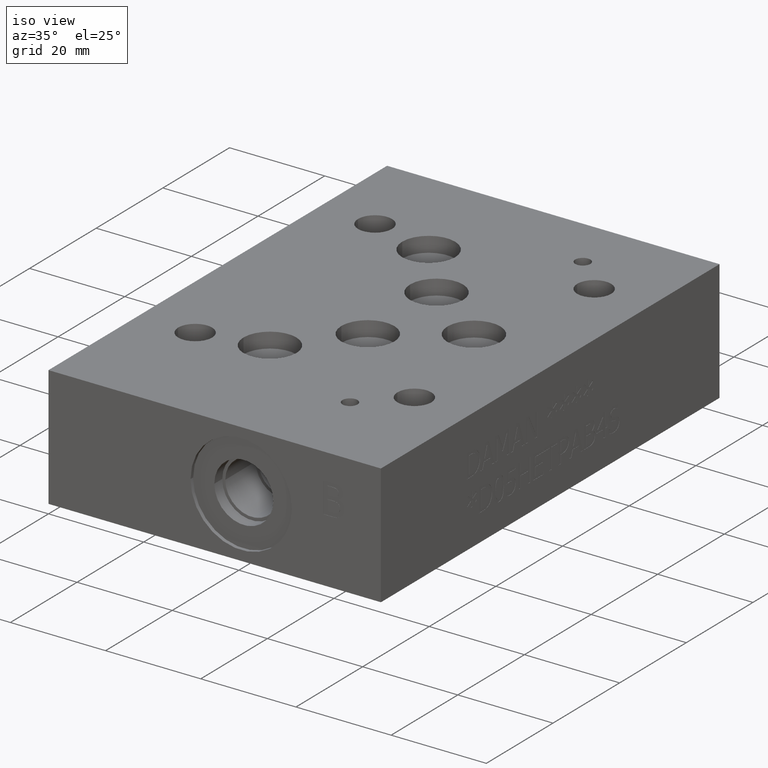
[diagram: clean part render]
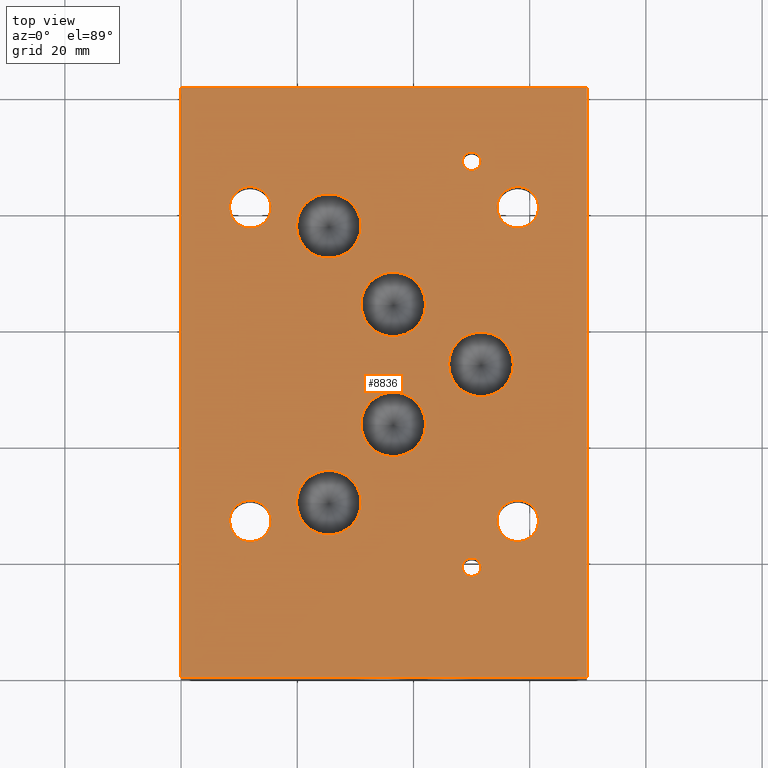
[diagram: tour spotlight — one face highlighted and labeled with its STEP entity id]
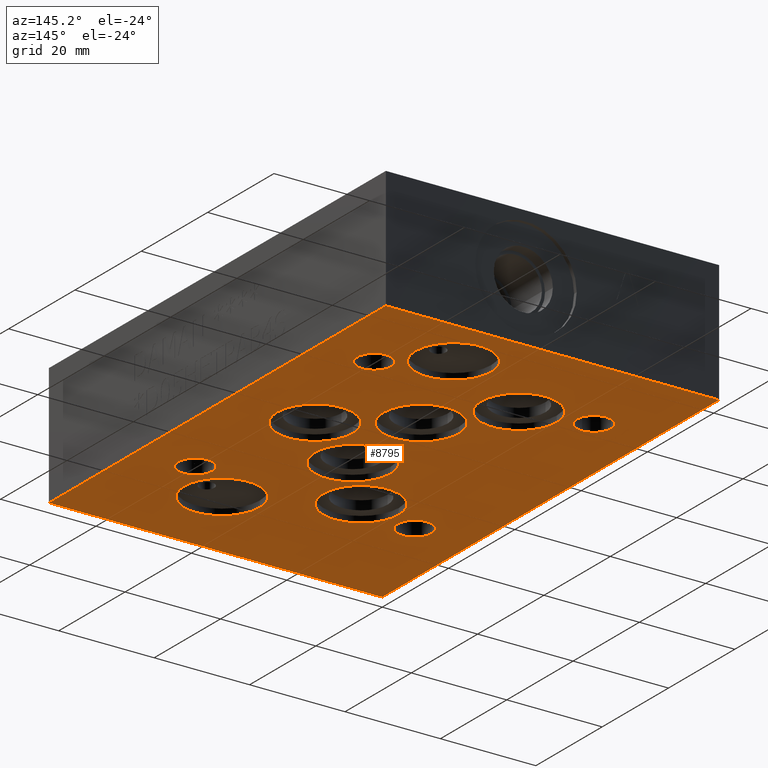
[diagram: tour spotlight — one face highlighted and labeled with its STEP entity id]
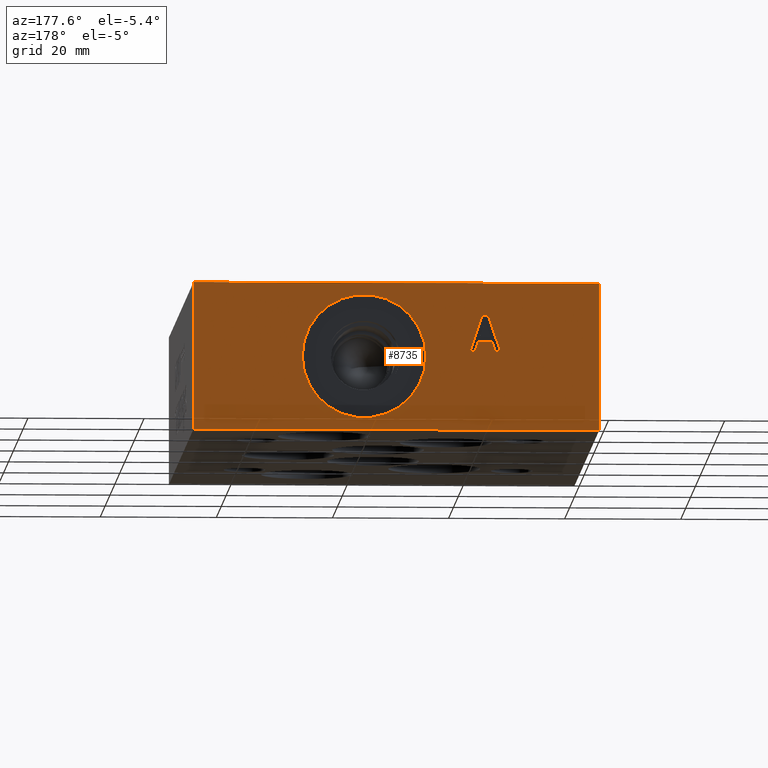
[diagram: tour spotlight — one face highlighted and labeled with its STEP entity id]
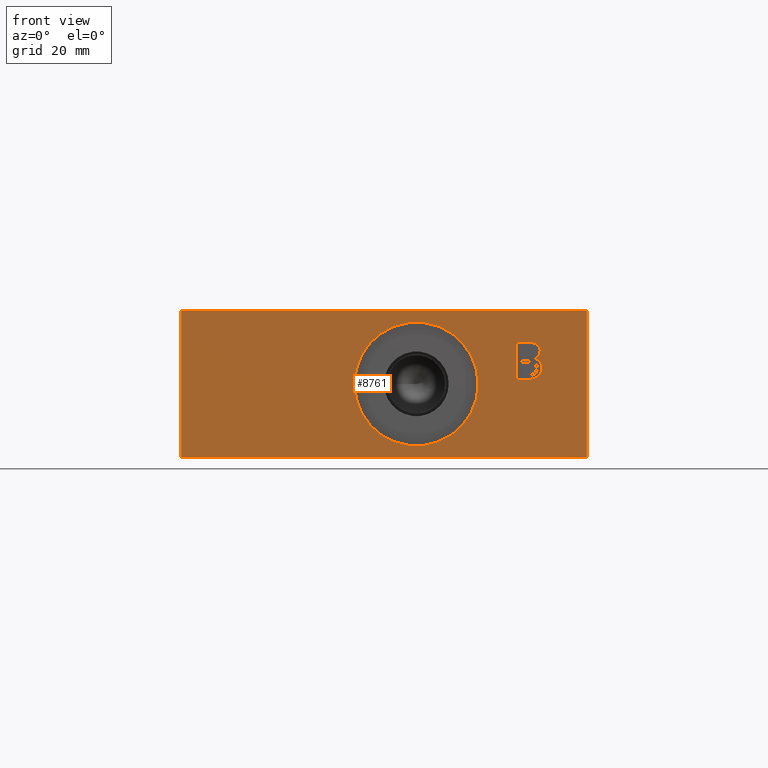
[diagram: tour spotlight — one face highlighted and labeled with its STEP entity id]
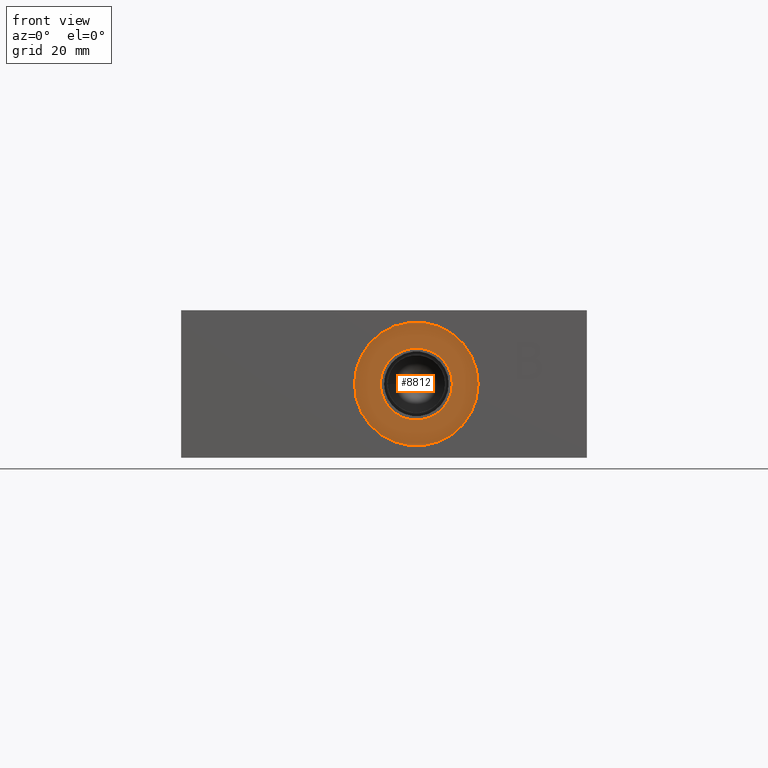
[diagram: tour spotlight — one face highlighted and labeled with its STEP entity id]
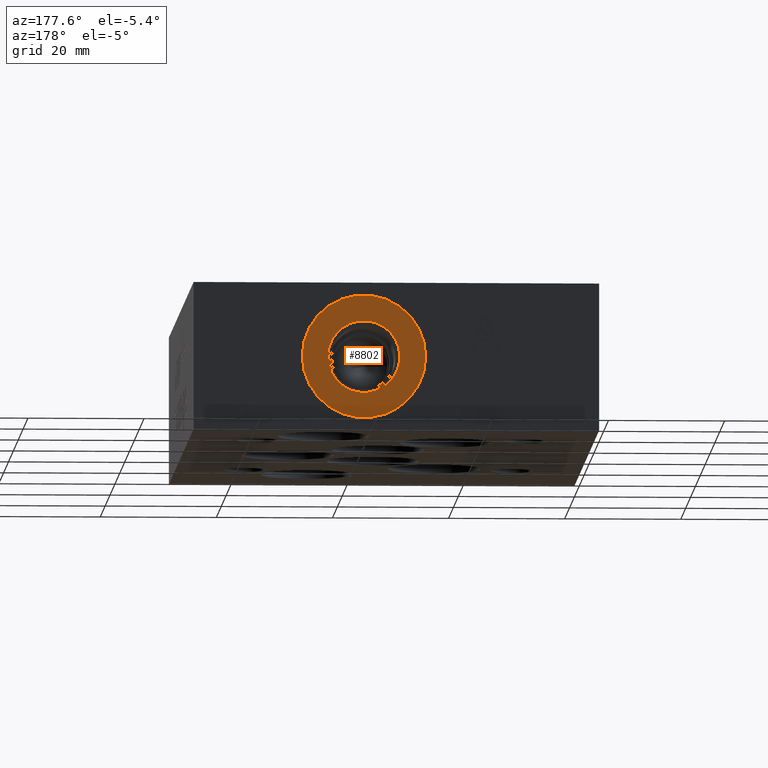
[diagram: tour spotlight — one face highlighted and labeled with its STEP entity id]
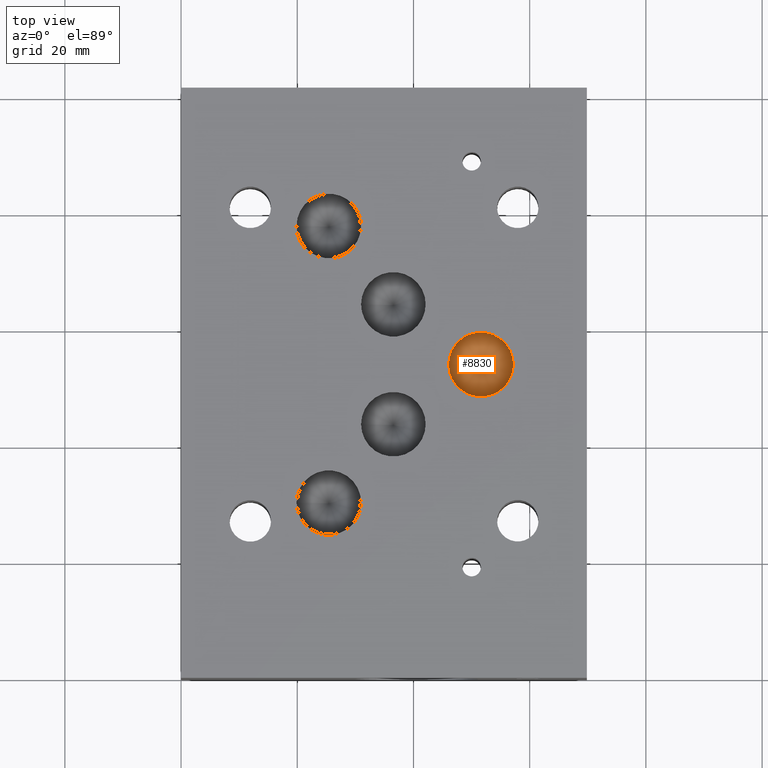
[diagram: tour spotlight — one face highlighted and labeled with its STEP entity id]
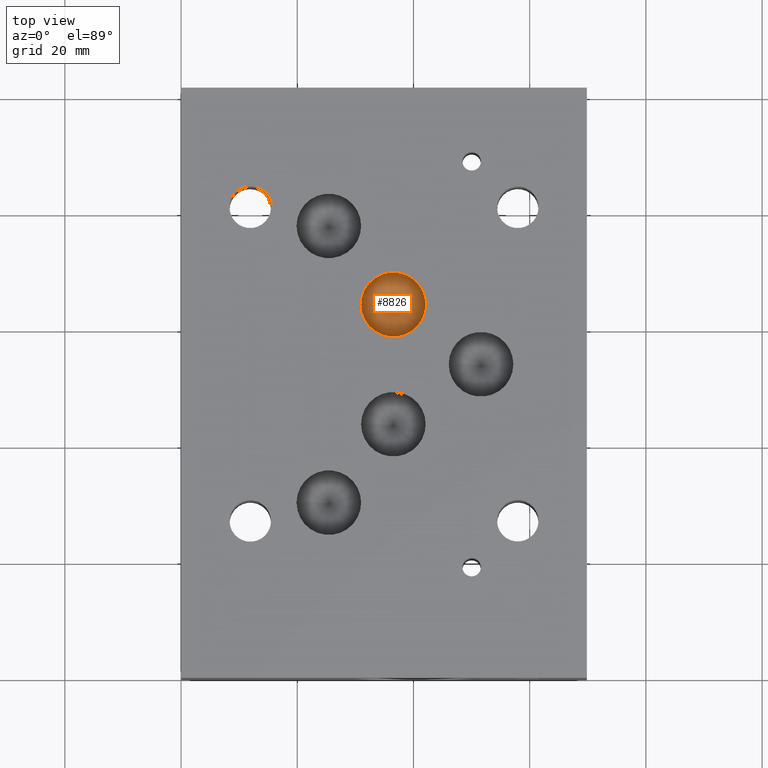
[diagram: tour spotlight — one face highlighted and labeled with its STEP entity id]
A machine part: a face-by-face anatomy tour. The part has 457 B-rep faces; the first image is the clean iso view, then the 8 largest visible faces are spotlighted one at a time (largest first), each with its STEP entity span.

Face 1 — top view, entity #8836. In plain terms, the highlighted planar face has unit normal (0, 0, 1).
Definition (entity closure, byte-faithful):
#131=CIRCLE('',#9260,3.5687);
#132=CIRCLE('',#9262,3.5687);
#133=CIRCLE('',#9264,3.5687);
#134=CIRCLE('',#9266,3.5687);
#135=CIRCLE('',#9268,1.5875);
#136=CIRCLE('',#9270,1.5875);
#138=CIRCLE('',#9274,5.55625);
#140=CIRCLE('',#9278,5.55625);
#142=CIRCLE('',#9282,5.55625);
#144=CIRCLE('',#9286,5.55625);
#146=CIRCLE('',#9290,5.5626);
#209=FACE_BOUND('',#1505,.T.);
#210=FACE_BOUND('',#1506,.T.);
#211=FACE_BOUND('',#1507,.T.);
#212=FACE_BOUND('',#1508,.T.);
#213=FACE_BOUND('',#1509,.T.);
#214=FACE_BOUND('',#1510,.T.);
#215=FACE_BOUND('',#1511,.T.);
#216=FACE_BOUND('',#1512,.T.);
#217=FACE_BOUND('',#1513,.T.);
#218=FACE_BOUND('',#1514,.T.);
#219=FACE_BOUND('',#1515,.T.);
#528=PLANE('',#9295);
#985=FACE_OUTER_BOUND('',#1504,.T.);
#1504=EDGE_LOOP('',(#7901,#7902,#7903,#7904));
#1505=EDGE_LOOP('',(#7905));
#1506=EDGE_LOOP('',(#7906));
#1507=EDGE_LOOP('',(#7907));
#1508=EDGE_LOOP('',(#7908));
#1509=EDGE_LOOP('',(#7909));
#1510=EDGE_LOOP('',(#7910));
#1511=EDGE_LOOP('',(#7911));
#1512=EDGE_LOOP('',(#7912));
#1513=EDGE_LOOP('',(#7913));
#1514=EDGE_LOOP('',(#7914));
#1515=EDGE_LOOP('',(#7915));
#1919=LINE('',#13133,#2841);
#2333=LINE('',#14115,#3255);
#2379=LINE('',#14449,#3301);
#2437=LINE('',#14838,#3359);
#2841=VECTOR('',#9947,10.);
#3255=VECTOR('',#10669,10.);
#3301=VECTOR('',#10741,10.);
#3359=VECTOR('',#11095,10.);
#3914=VERTEX_POINT('',#13130);
#3915=VERTEX_POINT('',#13132);
#4201=VERTEX_POINT('',#14113);
#4252=VERTEX_POINT('',#14448);
#4325=VERTEX_POINT('',#14769);
#4326=VERTEX_POINT('',#14773);
#4327=VERTEX_POINT('',#14777);
#4328=VERTEX_POINT('',#14781);
#4329=VERTEX_POINT('',#14785);
#4330=VERTEX_POINT('',#14789);
#4333=VERTEX_POINT('',#14798);
#4336=VERTEX_POINT('',#14807);
#4339=VERTEX_POINT('',#14816);
#4342=VERTEX_POINT('',#14825);
#4345=VERTEX_POINT('',#14834);
#4891=EDGE_CURVE('',#3915,#3914,#1919,.T.);
#5321=EDGE_CURVE('',#3914,#4201,#2333,.T.);
#5396=EDGE_CURVE('',#4252,#3915,#2379,.T.);
#5503=EDGE_CURVE('',#4325,#4325,#131,.T.);
#5505=EDGE_CURVE('',#4326,#4326,#132,.T.);
#5507=EDGE_CURVE('',#4327,#4327,#133,.T.);
#5509=EDGE_CURVE('',#4328,#4328,#134,.T.);
#5511=EDGE_CURVE('',#4329,#4329,#135,.T.);
#5513=EDGE_CURVE('',#4330,#4330,#136,.T.);
#5517=EDGE_CURVE('',#4333,#4333,#138,.T.);
#5521=EDGE_CURVE('',#4336,#4336,#140,.T.);
#5525=EDGE_CURVE('',#4339,#4339,#142,.T.);
#5529=EDGE_CURVE('',#4342,#4342,#144,.T.);
#5533=EDGE_CURVE('',#4345,#4345,#146,.T.);
#5535=EDGE_CURVE('',#4201,#4252,#2437,.T.);
#7901=ORIENTED_EDGE('',*,*,#5396,.T.);
#7902=ORIENTED_EDGE('',*,*,#4891,.T.);
#7903=ORIENTED_EDGE('',*,*,#5321,.T.);
#7904=ORIENTED_EDGE('',*,*,#5535,.T.);
#7905=ORIENTED_EDGE('',*,*,#5503,.T.);
#7906=ORIENTED_EDGE('',*,*,#5505,.T.);
#7907=ORIENTED_EDGE('',*,*,#5507,.T.);
#7908=ORIENTED_EDGE('',*,*,#5509,.T.);
#7909=ORIENTED_EDGE('',*,*,#5511,.T.);
#7910=ORIENTED_EDGE('',*,*,#5513,.T.);
#7911=ORIENTED_EDGE('',*,*,#5517,.T.);
#7912=ORIENTED_EDGE('',*,*,#5521,.T.);
#7913=ORIENTED_EDGE('',*,*,#5525,.T.);
#7914=ORIENTED_EDGE('',*,*,#5529,.T.);
#7915=ORIENTED_EDGE('',*,*,#5533,.T.);
#8836=ADVANCED_FACE('',(#985,#209,#210,#211,#212,#213,#214,#215,#216,#217,
#218,#219),#528,.T.);
#9260=AXIS2_PLACEMENT_3D('',#14770,#11015,#11016);
#9262=AXIS2_PLACEMENT_3D('',#14774,#11020,#11021);
#9264=AXIS2_PLACEMENT_3D('',#14778,#11025,#11026);
#9266=AXIS2_PLACEMENT_3D('',#14782,#11030,#11031);
#9268=AXIS2_PLACEMENT_3D('',#14786,#11035,#11036);
#9270=AXIS2_PLACEMENT_3D('',#14790,#11040,#11041);
#9274=AXIS2_PLACEMENT_3D('',#14799,#11050,#11051);
#9278=AXIS2_PLACEMENT_3D('',#14808,#11060,#11061);
#9282=AXIS2_PLACEMENT_3D('',#14817,#11070,#11071);
#9286=AXIS2_PLACEMENT_3D('',#14826,#11080,#11081);
#9290=AXIS2_PLACEMENT_3D('',#14835,#11090,#11091);
#9295=AXIS2_PLACEMENT_3D('',#14842,#11102,#11103);
#9947=DIRECTION('',(0.,1.,0.));
#10669=DIRECTION('',(-1.,0.,0.));
#10741=DIRECTION('',(1.,0.,0.));
#11015=DIRECTION('center_axis',(0.,0.,-1.));
#11016=DIRECTION('ref_axis',(1.,0.,0.));
#11020=DIRECTION('center_axis',(0.,0.,-1.));
#11021=DIRECTION('ref_axis',(1.,0.,0.));
#11025=DIRECTION('center_axis',(0.,0.,-1.));
#11026=DIRECTION('ref_axis',(1.,0.,0.));
#11030=DIRECTION('center_axis',(0.,0.,-1.));
#11031=DIRECTION('ref_axis',(1.,0.,0.));
#11035=DIRECTION('center_axis',(0.,0.,-1.));
#11036=DIRECTION('ref_axis',(1.,0.,0.));
#11040=DIRECTION('center_axis',(0.,0.,-1.));
#11041=DIRECTION('ref_axis',(1.,0.,0.));
#11050=DIRECTION('center_axis',(0.,0.,-1.));
#11051=DIRECTION('ref_axis',(1.,0.,0.));
#11060=DIRECTION('center_axis',(0.,0.,-1.));
#11061=DIRECTION('ref_axis',(1.,0.,0.));
#11070=DIRECTION('center_axis',(0.,0.,-1.));
#11071=DIRECTION('ref_axis',(1.,0.,0.));
#11080=DIRECTION('center_axis',(0.,0.,-1.));
#11081=DIRECTION('ref_axis',(1.,0.,0.));
#11090=DIRECTION('center_axis',(0.,0.,-1.));
#11091=DIRECTION('ref_axis',(1.,0.,0.));
#11095=DIRECTION('',(0.,-1.,0.));
#11102=DIRECTION('center_axis',(0.,0.,1.));
#11103=DIRECTION('ref_axis',(1.,0.,0.));
#13130=CARTESIAN_POINT('',(69.85,101.6,25.4));
#13132=CARTESIAN_POINT('',(69.85,0.,25.4));
#13133=CARTESIAN_POINT('',(69.85,0.,25.4));
#14113=CARTESIAN_POINT('',(0.,101.6,25.4));
#14115=CARTESIAN_POINT('',(69.85,101.6,25.4));
#14448=CARTESIAN_POINT('',(0.,0.,25.4));
#14449=CARTESIAN_POINT('',(0.,0.,25.4));
#14769=CARTESIAN_POINT('',(8.3312,80.9879,25.4));
#14770=CARTESIAN_POINT('Origin',(11.8999,80.9879,25.4));
#14773=CARTESIAN_POINT('',(8.3439,27.0002,25.4));
#14774=CARTESIAN_POINT('Origin',(11.9126,27.0002,25.4));
#14777=CARTESIAN_POINT('',(54.3814,27.0383,25.4));
#14778=CARTESIAN_POINT('Origin',(57.9501,27.0383,25.4));
#14781=CARTESIAN_POINT('',(54.3814,80.9879,25.4));
#14782=CARTESIAN_POINT('Origin',(57.9501,80.9879,25.4));
#14785=CARTESIAN_POINT('',(48.4251,19.05,25.4));
#14786=CARTESIAN_POINT('Origin',(50.0126,19.05,25.4));
#14789=CARTESIAN_POINT('',(48.4251,88.9,25.4));
#14790=CARTESIAN_POINT('Origin',(50.0126,88.9,25.4));
#14798=CARTESIAN_POINT('',(30.97403,43.64482,25.4));
#14799=CARTESIAN_POINT('Origin',(36.53028,43.64482,25.4));
#14807=CARTESIAN_POINT('',(19.86407,77.7748,25.4));
#14808=CARTESIAN_POINT('Origin',(25.42032,77.7748,25.4));
#14816=CARTESIAN_POINT('',(30.96895,64.27978,25.4));
#14817=CARTESIAN_POINT('Origin',(36.5252,64.27978,25.4));
#14825=CARTESIAN_POINT('',(19.86407,30.1498,25.4));
#14826=CARTESIAN_POINT('Origin',(25.42032,30.1498,25.4));
#14834=CARTESIAN_POINT('',(46.0502,53.9623,25.4));
#14835=CARTESIAN_POINT('Origin',(51.6128,53.9623,25.4));
#14838=CARTESIAN_POINT('',(0.,101.6,25.4));
#14842=CARTESIAN_POINT('Origin',(34.925,50.8,25.4));

Face 2 — auxiliary view, entity #8795. In plain terms, the highlighted planar face has unit normal (0, 0, 1).
Definition (entity closure, byte-faithful):
#81=CIRCLE('',#9167,7.9375);
#84=CIRCLE('',#9172,7.9375);
#86=CIRCLE('',#9176,7.9375);
#88=CIRCLE('',#9180,7.9375);
#90=CIRCLE('',#9184,7.9375);
#92=CIRCLE('',#9188,7.9375);
#94=CIRCLE('',#9192,7.9375);
#98=CIRCLE('',#9199,3.5687);
#100=CIRCLE('',#9203,3.5687);
#102=CIRCLE('',#9207,3.5687);
#104=CIRCLE('',#9211,3.5687);
#105=CIRCLE('',#9213,3.5687);
#106=CIRCLE('',#9214,3.5687);
#107=CIRCLE('',#9215,3.5687);
#108=CIRCLE('',#9216,3.5687);
#109=CIRCLE('',#9217,3.5687);
#110=CIRCLE('',#9218,3.5687);
#111=CIRCLE('',#9219,3.5687);
#112=CIRCLE('',#9220,3.5687);
#192=FACE_BOUND('',#1447,.T.);
#193=FACE_BOUND('',#1448,.T.);
#194=FACE_BOUND('',#1449,.T.);
#195=FACE_BOUND('',#1450,.T.);
#196=FACE_BOUND('',#1451,.T.);
#197=FACE_BOUND('',#1452,.T.);
#198=FACE_BOUND('',#1453,.T.);
#199=FACE_BOUND('',#1454,.T.);
#200=FACE_BOUND('',#1455,.T.);
#201=FACE_BOUND('',#1456,.T.);
#202=FACE_BOUND('',#1457,.T.);
#517=PLANE('',#9212);
#944=FACE_OUTER_BOUND('',#1446,.T.);
#1446=EDGE_LOOP('',(#7720,#7721,#7722,#7723));
#1447=EDGE_LOOP('',(#7724));
#1448=EDGE_LOOP('',(#7725));
#1449=EDGE_LOOP('',(#7726));
#1450=EDGE_LOOP('',(#7727));
#1451=EDGE_LOOP('',(#7728));
#1452=EDGE_LOOP('',(#7729));
#1453=EDGE_LOOP('',(#7730));
#1454=EDGE_LOOP('',(#7731,#7732,#7733));
#1455=EDGE_LOOP('',(#7734,#7735,#7736));
#1456=EDGE_LOOP('',(#7737,#7738,#7739));
#1457=EDGE_LOOP('',(#7740,#7741,#7742));
#1917=LINE('',#13129,#2839);
#2331=LINE('',#14112,#3253);
#2378=LINE('',#14447,#3300);
#2406=LINE('',#14683,#3328);
#2839=VECTOR('',#9945,10.);
#3253=VECTOR('',#10667,10.);
#3300=VECTOR('',#10740,10.);
#3328=VECTOR('',#10906,10.);
#3912=VERTEX_POINT('',#13127);
#3913=VERTEX_POINT('',#13128);
#4200=VERTEX_POINT('',#14111);
#4251=VERTEX_POINT('',#14446);
#4269=VERTEX_POINT('',#14500);
#4272=VERTEX_POINT('',#14509);
#4274=VERTEX_POINT('',#14516);
#4276=VERTEX_POINT('',#14523);
#4278=VERTEX_POINT('',#14530);
#4280=VERTEX_POINT('',#14537);
#4282=VERTEX_POINT('',#14544);
#4287=VERTEX_POINT('',#14580);
#4288=VERTEX_POINT('',#14582);
#4291=VERTEX_POINT('',#14613);
#4292=VERTEX_POINT('',#14615);
#4295=VERTEX_POINT('',#14646);
#4296=VERTEX_POINT('',#14648);
#4299=VERTEX_POINT('',#14677);
#4300=VERTEX_POINT('',#14679);
#4301=VERTEX_POINT('',#14684);
#4302=VERTEX_POINT('',#14687);
#4303=VERTEX_POINT('',#14690);
#4304=VERTEX_POINT('',#14693);
#4889=EDGE_CURVE('',#3912,#3913,#1917,.T.);
#5319=EDGE_CURVE('',#3913,#4200,#2331,.T.);
#5395=EDGE_CURVE('',#4251,#3912,#2378,.T.);
#5419=EDGE_CURVE('',#4269,#4269,#81,.T.);
#5423=EDGE_CURVE('',#4272,#4272,#84,.T.);
#5426=EDGE_CURVE('',#4274,#4274,#86,.T.);
#5429=EDGE_CURVE('',#4276,#4276,#88,.T.);
#5432=EDGE_CURVE('',#4278,#4278,#90,.T.);
#5435=EDGE_CURVE('',#4280,#4280,#92,.T.);
#5438=EDGE_CURVE('',#4282,#4282,#94,.T.);
#5446=EDGE_CURVE('',#4287,#4288,#98,.T.);
#5451=EDGE_CURVE('',#4291,#4292,#100,.T.);
#5456=EDGE_CURVE('',#4295,#4296,#102,.T.);
#5461=EDGE_CURVE('',#4299,#4300,#104,.T.);
#5462=EDGE_CURVE('',#4200,#4251,#2406,.T.);
#5463=EDGE_CURVE('',#4292,#4301,#105,.T.);
#5464=EDGE_CURVE('',#4301,#4291,#106,.T.);
#5465=EDGE_CURVE('',#4300,#4302,#107,.T.);
#5466=EDGE_CURVE('',#4302,#4299,#108,.T.);
#5467=EDGE_CURVE('',#4288,#4303,#109,.T.);
#5468=EDGE_CURVE('',#4303,#4287,#110,.T.);
#5469=EDGE_CURVE('',#4296,#4304,#111,.T.);
#5470=EDGE_CURVE('',#4304,#4295,#112,.T.);
#7720=ORIENTED_EDGE('',*,*,#5395,.F.);
#7721=ORIENTED_EDGE('',*,*,#5462,.F.);
#7722=ORIENTED_EDGE('',*,*,#5319,.F.);
#7723=ORIENTED_EDGE('',*,*,#4889,.F.);
#7724=ORIENTED_EDGE('',*,*,#5419,.T.);
#7725=ORIENTED_EDGE('',*,*,#5423,.T.);
#7726=ORIENTED_EDGE('',*,*,#5426,.T.);
#7727=ORIENTED_EDGE('',*,*,#5429,.T.);
#7728=ORIENTED_EDGE('',*,*,#5432,.T.);
#7729=ORIENTED_EDGE('',*,*,#5435,.T.);
#7730=ORIENTED_EDGE('',*,*,#5438,.T.);
#7731=ORIENTED_EDGE('',*,*,#5451,.T.);
#7732=ORIENTED_EDGE('',*,*,#5463,.T.);
#7733=ORIENTED_EDGE('',*,*,#5464,.T.);
#7734=ORIENTED_EDGE('',*,*,#5461,.T.);
#7735=ORIENTED_EDGE('',*,*,#5465,.T.);
#7736=ORIENTED_EDGE('',*,*,#5466,.T.);
#7737=ORIENTED_EDGE('',*,*,#5446,.T.);
#7738=ORIENTED_EDGE('',*,*,#5467,.T.);
#7739=ORIENTED_EDGE('',*,*,#5468,.T.);
#7740=ORIENTED_EDGE('',*,*,#5456,.T.);
#7741=ORIENTED_EDGE('',*,*,#5469,.T.);
#7742=ORIENTED_EDGE('',*,*,#5470,.T.);
#8795=ADVANCED_FACE('',(#944,#192,#193,#194,#195,#196,#197,#198,#199,#200,
#201,#202),#517,.F.);
#9167=AXIS2_PLACEMENT_3D('',#14501,#10799,#10800);
#9172=AXIS2_PLACEMENT_3D('',#14510,#10810,#10811);
#9176=AXIS2_PLACEMENT_3D('',#14517,#10819,#10820);
#9180=AXIS2_PLACEMENT_3D('',#14524,#10828,#10829);
#9184=AXIS2_PLACEMENT_3D('',#14531,#10837,#10838);
#9188=AXIS2_PLACEMENT_3D('',#14538,#10846,#10847);
#9192=AXIS2_PLACEMENT_3D('',#14545,#10855,#10856);
#9199=AXIS2_PLACEMENT_3D('',#14584,#10872,#10873);
#9203=AXIS2_PLACEMENT_3D('',#14617,#10882,#10883);
#9207=AXIS2_PLACEMENT_3D('',#14650,#10892,#10893);
#9211=AXIS2_PLACEMENT_3D('',#14681,#10902,#10903);
#9212=AXIS2_PLACEMENT_3D('',#14682,#10904,#10905);
#9213=AXIS2_PLACEMENT_3D('',#14685,#10907,#10908);
#9214=AXIS2_PLACEMENT_3D('',#14686,#10909,#10910);
#9215=AXIS2_PLACEMENT_3D('',#14688,#10911,#10912);
#9216=AXIS2_PLACEMENT_3D('',#14689,#10913,#10914);
#9217=AXIS2_PLACEMENT_3D('',#14691,#10915,#10916);
#9218=AXIS2_PLACEMENT_3D('',#14692,#10917,#10918);
#9219=AXIS2_PLACEMENT_3D('',#14694,#10919,#10920);
#9220=AXIS2_PLACEMENT_3D('',#14695,#10921,#10922);
#9945=DIRECTION('',(0.,1.,0.));
#10667=DIRECTION('',(-1.,0.,0.));
#10740=DIRECTION('',(1.,0.,0.));
#10799=DIRECTION('center_axis',(0.,0.,1.));
#10800=DIRECTION('ref_axis',(1.,0.,0.));
#10810=DIRECTION('center_axis',(0.,0.,1.));
#10811=DIRECTION('ref_axis',(1.,0.,0.));
#10819=DIRECTION('center_axis',(0.,0.,1.));
#10820=DIRECTION('ref_axis',(1.,0.,0.));
#10828=DIRECTION('center_axis',(0.,0.,1.));
#10829=DIRECTION('ref_axis',(1.,0.,0.));
#10837=DIRECTION('center_axis',(0.,0.,1.));
#10838=DIRECTION('ref_axis',(1.,0.,0.));
#10846=DIRECTION('center_axis',(0.,0.,1.));
#10847=DIRECTION('ref_axis',(1.,0.,0.));
#10855=DIRECTION('center_axis',(0.,0.,1.));
#10856=DIRECTION('ref_axis',(1.,0.,0.));
#10872=DIRECTION('center_axis',(0.,0.,1.));
#10873=DIRECTION('ref_axis',(1.,0.,0.));
#10882=DIRECTION('center_axis',(0.,0.,1.));
#10883=DIRECTION('ref_axis',(1.,0.,0.));
#10892=DIRECTION('center_axis',(0.,0.,1.));
#10893=DIRECTION('ref_axis',(1.,0.,0.));
#10902=DIRECTION('center_axis',(0.,0.,1.));
#10903=DIRECTION('ref_axis',(1.,0.,0.));
#10904=DIRECTION('center_axis',(0.,0.,1.));
#10905=DIRECTION('ref_axis',(1.,0.,0.));
#10906=DIRECTION('',(0.,-1.,0.));
#10907=DIRECTION('center_axis',(0.,0.,1.));
#10908=DIRECTION('ref_axis',(1.,0.,0.));
#10909=DIRECTION('center_axis',(0.,0.,1.));
#10910=DIRECTION('ref_axis',(1.,0.,0.));
#10911=DIRECTION('center_axis',(0.,0.,1.));
#10912=DIRECTION('ref_axis',(1.,0.,0.));
#10913=DIRECTION('center_axis',(0.,0.,1.));
#10914=DIRECTION('ref_axis',(1.,0.,0.));
#10915=DIRECTION('center_axis',(0.,0.,1.));
#10916=DIRECTION('ref_axis',(1.,0.,0.));
#10917=DIRECTION('center_axis',(0.,0.,1.));
#10918=DIRECTION('ref_axis',(1.,0.,0.));
#10919=DIRECTION('center_axis',(0.,0.,1.));
#10920=DIRECTION('ref_axis',(1.,0.,0.));
#10921=DIRECTION('center_axis',(0.,0.,1.));
#10922=DIRECTION('ref_axis',(1.,0.,0.));
#13127=CARTESIAN_POINT('',(69.85,0.,0.));
#13128=CARTESIAN_POINT('',(69.85,101.6,0.));
#13129=CARTESIAN_POINT('',(69.85,0.,0.));
#14111=CARTESIAN_POINT('',(0.,101.6,0.));
#14112=CARTESIAN_POINT('',(69.85,101.6,0.));
#14446=CARTESIAN_POINT('',(0.,0.,0.));
#14447=CARTESIAN_POINT('',(0.,0.,0.));
#14500=CARTESIAN_POINT('',(38.9255,88.9254,0.));
#14501=CARTESIAN_POINT('Origin',(46.863,88.9254,0.));
#14509=CARTESIAN_POINT('',(28.5877,43.688,0.));
#14510=CARTESIAN_POINT('Origin',(36.5252,43.688,0.));
#14516=CARTESIAN_POINT('',(17.4879,77.8256,0.));
#14517=CARTESIAN_POINT('Origin',(25.4254,77.8256,0.));
#14523=CARTESIAN_POINT('',(43.6753,54.0004,0.));
#14524=CARTESIAN_POINT('Origin',(51.6128,54.0004,0.));
#14530=CARTESIAN_POINT('',(28.5877,64.3128,0.));
#14531=CARTESIAN_POINT('Origin',(36.5252,64.3128,0.));
#14537=CARTESIAN_POINT('',(17.4879,30.2006,0.));
#14538=CARTESIAN_POINT('Origin',(25.4254,30.2006,0.));
#14544=CARTESIAN_POINT('',(38.9255,19.0754,0.));
#14545=CARTESIAN_POINT('Origin',(46.863,19.0754,0.));
#14580=CARTESIAN_POINT('',(55.4330060195439,24.5085060195439,0.));
#14582=CARTESIAN_POINT('',(60.4798939804561,29.5553939804561,0.));
#14584=CARTESIAN_POINT('Origin',(57.9628,27.0256,0.));
#14613=CARTESIAN_POINT('',(11.906250000005,77.4192056494707,0.));
#14615=CARTESIAN_POINT('',(11.906249999995,84.5565943505294,0.));
#14617=CARTESIAN_POINT('Origin',(11.9126,80.9879,0.));
#14646=CARTESIAN_POINT('',(60.4798939804578,78.4708060195457,0.));
#14648=CARTESIAN_POINT('',(55.4330060195422,83.5176939804543,0.));
#14650=CARTESIAN_POINT('Origin',(57.9628,81.0006,0.));
#14677=CARTESIAN_POINT('',(15.1108670512404,25.4169414743795,0.));
#14679=CARTESIAN_POINT('',(8.72703294875959,28.6088585256205,0.));
#14681=CARTESIAN_POINT('Origin',(11.9253,27.0256,0.));
#14682=CARTESIAN_POINT('Origin',(34.925,50.8,0.));
#14683=CARTESIAN_POINT('',(0.,101.6,0.));
#14684=CARTESIAN_POINT('',(8.3312,80.9879,0.));
#14685=CARTESIAN_POINT('Origin',(11.8999,80.9879,0.));
#14686=CARTESIAN_POINT('Origin',(11.8999,80.9879,0.));
#14687=CARTESIAN_POINT('',(8.3439,27.0002,0.));
#14688=CARTESIAN_POINT('Origin',(11.9126,27.0002,0.));
#14689=CARTESIAN_POINT('Origin',(11.9126,27.0002,0.));
#14690=CARTESIAN_POINT('',(54.3814,27.0383,0.));
#14691=CARTESIAN_POINT('Origin',(57.9501,27.0383,0.));
#14692=CARTESIAN_POINT('Origin',(57.9501,27.0383,0.));
#14693=CARTESIAN_POINT('',(54.3814,80.9879,0.));
#14694=CARTESIAN_POINT('Origin',(57.9501,80.9879,0.));
#14695=CARTESIAN_POINT('Origin',(57.9501,80.9879,0.));

Face 3 — auxiliary view, entity #8735. In plain terms, the highlighted planar face has unit normal (0, 1, 0).
Definition (entity closure, byte-faithful):
#69=CIRCLE('',#9131,10.6426);
#179=FACE_BOUND('',#1374,.T.);
#180=FACE_BOUND('',#1375,.T.);
#496=PLANE('',#9130);
#884=FACE_OUTER_BOUND('',#1373,.T.);
#1373=EDGE_LOOP('',(#7464,#7465,#7466,#7467));
#1374=EDGE_LOOP('',(#7468));
#1375=EDGE_LOOP('',(#7469,#7470,#7471,#7472,#7473,#7474,#7475,#7476));
#1918=LINE('',#13131,#2840);
#2307=LINE('',#14064,#3229);
#2311=LINE('',#14072,#3233);
#2314=LINE('',#14078,#3236);
#2317=LINE('',#14084,#3239);
#2320=LINE('',#14090,#3242);
#2323=LINE('',#14096,#3245);
#2326=LINE('',#14102,#3248);
#2329=LINE('',#14107,#3251);
#2331=LINE('',#14112,#3253);
#2332=LINE('',#14114,#3254);
#2333=LINE('',#14115,#3255);
#2840=VECTOR('',#9946,10.);
#3229=VECTOR('',#10625,10.);
#3233=VECTOR('',#10631,10.);
#3236=VECTOR('',#10636,10.);
#3239=VECTOR('',#10641,10.);
#3242=VECTOR('',#10646,10.);
#3245=VECTOR('',#10651,10.);
#3248=VECTOR('',#10656,10.);
#3251=VECTOR('',#10661,10.);
#3253=VECTOR('',#10667,10.);
#3254=VECTOR('',#10668,10.);
#3255=VECTOR('',#10669,10.);
#3913=VERTEX_POINT('',#13128);
#3914=VERTEX_POINT('',#13130);
#4184=VERTEX_POINT('',#14062);
#4185=VERTEX_POINT('',#14063);
#4188=VERTEX_POINT('',#14071);
#4190=VERTEX_POINT('',#14077);
#4192=VERTEX_POINT('',#14083);
#4194=VERTEX_POINT('',#14089);
#4196=VERTEX_POINT('',#14095);
#4198=VERTEX_POINT('',#14101);
#4200=VERTEX_POINT('',#14111);
#4201=VERTEX_POINT('',#14113);
#4202=VERTEX_POINT('',#14116);
#4890=EDGE_CURVE('',#3913,#3914,#1918,.T.);
#5295=EDGE_CURVE('',#4184,#4185,#2307,.T.);
#5299=EDGE_CURVE('',#4188,#4184,#2311,.T.);
#5302=EDGE_CURVE('',#4190,#4188,#2314,.T.);
#5305=EDGE_CURVE('',#4192,#4190,#2317,.T.);
#5308=EDGE_CURVE('',#4194,#4192,#2320,.T.);
#5311=EDGE_CURVE('',#4196,#4194,#2323,.T.);
#5314=EDGE_CURVE('',#4198,#4196,#2326,.T.);
#5317=EDGE_CURVE('',#4185,#4198,#2329,.T.);
#5319=EDGE_CURVE('',#3913,#4200,#2331,.T.);
#5320=EDGE_CURVE('',#4200,#4201,#2332,.T.);
#5321=EDGE_CURVE('',#3914,#4201,#2333,.T.);
#5322=EDGE_CURVE('',#4202,#4202,#69,.T.);
#7464=ORIENTED_EDGE('',*,*,#5319,.T.);
#7465=ORIENTED_EDGE('',*,*,#5320,.T.);
#7466=ORIENTED_EDGE('',*,*,#5321,.F.);
#7467=ORIENTED_EDGE('',*,*,#4890,.F.);
#7468=ORIENTED_EDGE('',*,*,#5322,.T.);
#7469=ORIENTED_EDGE('',*,*,#5295,.T.);
#7470=ORIENTED_EDGE('',*,*,#5317,.T.);
#7471=ORIENTED_EDGE('',*,*,#5314,.T.);
#7472=ORIENTED_EDGE('',*,*,#5311,.T.);
#7473=ORIENTED_EDGE('',*,*,#5308,.T.);
#7474=ORIENTED_EDGE('',*,*,#5305,.T.);
#7475=ORIENTED_EDGE('',*,*,#5302,.T.);
#7476=ORIENTED_EDGE('',*,*,#5299,.T.);
#8735=ADVANCED_FACE('',(#884,#179,#180),#496,.T.);
#9130=AXIS2_PLACEMENT_3D('',#14110,#10665,#10666);
#9131=AXIS2_PLACEMENT_3D('',#14117,#10670,#10671);
#9946=DIRECTION('',(0.,0.,1.));
#10625=DIRECTION('',(1.,0.,5.19880555151508E-15));
#10631=DIRECTION('',(0.308774363938384,0.,-0.951135317488761));
#10636=DIRECTION('',(1.,0.,3.6645508346136E-15));
#10641=DIRECTION('',(0.308774363938379,0.,0.951135317488763));
#10646=DIRECTION('',(1.,0.,2.49422462876157E-15));
#10651=DIRECTION('',(-0.319451166674565,0.,-0.947602739606772));
#10656=DIRECTION('',(-1.,0.,-4.27228575025497E-15));
#10661=DIRECTION('',(-0.31945116667457,0.,0.94760273960677));
#10665=DIRECTION('center_axis',(0.,1.,0.));
#10666=DIRECTION('ref_axis',(-1.,0.,0.));
#10667=DIRECTION('',(-1.,0.,0.));
#10668=DIRECTION('',(0.,0.,1.));
#10669=DIRECTION('',(-1.,0.,0.));
#10670=DIRECTION('center_axis',(0.,-1.,0.));
#10671=DIRECTION('ref_axis',(1.,0.,0.));
#13128=CARTESIAN_POINT('',(69.85,101.6,0.));
#13130=CARTESIAN_POINT('',(69.85,101.6,25.4));
#13131=CARTESIAN_POINT('',(69.85,101.6,0.));
#14062=CARTESIAN_POINT('',(21.41195301059,101.6,13.49375));
#14063=CARTESIAN_POINT('',(22.2661669361727,101.6,13.49375));
#14064=CARTESIAN_POINT('',(45.630976505295,101.6,13.4937500000001));
#14071=CARTESIAN_POINT('',(20.8356159041728,101.6,15.2690741224459));
#14072=CARTESIAN_POINT('',(25.4143291960173,101.6,1.16500192881784));
#14077=CARTESIAN_POINT('',(18.4119125370075,101.6,15.2690741224459));
#14078=CARTESIAN_POINT('',(44.1309562685037,101.6,15.269074122446));
#14083=CARTESIAN_POINT('',(17.8355754305903,101.6,13.49375));
#14084=CARTESIAN_POINT('',(18.3336807661886,101.6,15.0280923284055));
#14089=CARTESIAN_POINT('',(16.9453404358566,101.6,13.49375));
#14090=CARTESIAN_POINT('',(43.3976702179283,101.6,13.4937500000001));
#14095=CARTESIAN_POINT('',(19.0860211168348,101.6,19.8437499046326));
#14096=CARTESIAN_POINT('',(18.6727504177718,101.6,18.6178459559698));
#14101=CARTESIAN_POINT('',(20.1254862551944,101.6,19.8437499046326));
#14102=CARTESIAN_POINT('',(44.9877431275971,101.6,19.8437499046327));
#14107=CARTESIAN_POINT('',(26.7364747930264,101.6,0.233269482313627));
#14110=CARTESIAN_POINT('Origin',(69.85,101.6,0.));
#14111=CARTESIAN_POINT('',(0.,101.6,0.));
#14112=CARTESIAN_POINT('',(69.85,101.6,0.));
#14113=CARTESIAN_POINT('',(0.,101.6,25.4));
#14114=CARTESIAN_POINT('',(0.,101.6,0.));
#14115=CARTESIAN_POINT('',(69.85,101.6,25.4));
#14116=CARTESIAN_POINT('',(29.845,101.6,12.7));
#14117=CARTESIAN_POINT('Origin',(40.4876,101.6,12.7));

Face 4 — front view, entity #8761. In plain terms, the highlighted planar face has unit normal (0, -1, 0).
Definition (entity closure, byte-faithful):
#70=CIRCLE('',#9144,10.6426);
#183=FACE_BOUND('',#1404,.T.);
#184=FACE_BOUND('',#1405,.T.);
#508=PLANE('',#9143);
#910=FACE_OUTER_BOUND('',#1403,.T.);
#1403=EDGE_LOOP('',(#7597,#7598,#7599,#7600));
#1404=EDGE_LOOP('',(#7601,#7602,#7603,#7604,#7605,#7606,#7607,#7608,#7609,
#7610));
#1405=EDGE_LOOP('',(#7611));
#1920=LINE('',#13134,#2842);
#2362=LINE('',#14330,#3284);
#2368=LINE('',#14393,#3290);
#2371=LINE('',#14399,#3293);
#2374=LINE('',#14405,#3296);
#2378=LINE('',#14447,#3300);
#2379=LINE('',#14449,#3301);
#2380=LINE('',#14450,#3302);
#2842=VECTOR('',#9948,10.);
#3284=VECTOR('',#10714,10.);
#3290=VECTOR('',#10722,10.);
#3293=VECTOR('',#10727,10.);
#3296=VECTOR('',#10732,10.);
#3300=VECTOR('',#10740,10.);
#3301=VECTOR('',#10741,10.);
#3302=VECTOR('',#10742,10.);
#3534=B_SPLINE_CURVE_WITH_KNOTS('',2,(#14316,#14317,#14318,#14319),
 .UNSPECIFIED.,.F.,.F.,(3,1,3),(0.,1.,2.),.UNSPECIFIED.);
#3536=B_SPLINE_CURVE_WITH_KNOTS('',2,(#14343,#14344,#14345,#14346),
 .UNSPECIFIED.,.F.,.F.,(3,1,3),(0.,1.,2.),.UNSPECIFIED.);
#3538=B_SPLINE_CURVE_WITH_KNOTS('',2,(#14362,#14363,#14364,#14365),
 .UNSPECIFIED.,.F.,.F.,(3,1,3),(0.,1.,2.),.UNSPECIFIED.);
#3540=B_SPLINE_CURVE_WITH_KNOTS('',2,(#14381,#14382,#14383,#14384),
 .UNSPECIFIED.,.F.,.F.,(3,1,3),(0.,1.,2.),.UNSPECIFIED.);
#3542=B_SPLINE_CURVE_WITH_KNOTS('',2,(#14418,#14419,#14420,#14421),
 .UNSPECIFIED.,.F.,.F.,(3,1,3),(0.,1.,2.),.UNSPECIFIED.);
#3544=B_SPLINE_CURVE_WITH_KNOTS('',2,(#14436,#14437,#14438,#14439),
 .UNSPECIFIED.,.F.,.F.,(3,1,3),(0.,1.,2.),.UNSPECIFIED.);
#3912=VERTEX_POINT('',#13127);
#3915=VERTEX_POINT('',#13132);
#4231=VERTEX_POINT('',#14314);
#4232=VERTEX_POINT('',#14315);
#4235=VERTEX_POINT('',#14329);
#4237=VERTEX_POINT('',#14342);
#4239=VERTEX_POINT('',#14361);
#4241=VERTEX_POINT('',#14380);
#4243=VERTEX_POINT('',#14392);
#4245=VERTEX_POINT('',#14398);
#4247=VERTEX_POINT('',#14404);
#4249=VERTEX_POINT('',#14417);
#4251=VERTEX_POINT('',#14446);
#4252=VERTEX_POINT('',#14448);
#4253=VERTEX_POINT('',#14451);
#4892=EDGE_CURVE('',#3912,#3915,#1920,.T.);
#5365=EDGE_CURVE('',#4231,#4232,#3534,.T.);
#5369=EDGE_CURVE('',#4235,#4231,#2362,.T.);
#5372=EDGE_CURVE('',#4237,#4235,#3536,.T.);
#5375=EDGE_CURVE('',#4239,#4237,#3538,.T.);
#5378=EDGE_CURVE('',#4241,#4239,#3540,.T.);
#5381=EDGE_CURVE('',#4243,#4241,#2368,.T.);
#5384=EDGE_CURVE('',#4245,#4243,#2371,.T.);
#5387=EDGE_CURVE('',#4247,#4245,#2374,.T.);
#5390=EDGE_CURVE('',#4249,#4247,#3542,.T.);
#5393=EDGE_CURVE('',#4232,#4249,#3544,.T.);
#5395=EDGE_CURVE('',#4251,#3912,#2378,.T.);
#5396=EDGE_CURVE('',#4252,#3915,#2379,.T.);
#5397=EDGE_CURVE('',#4251,#4252,#2380,.T.);
#5398=EDGE_CURVE('',#4253,#4253,#70,.T.);
#7597=ORIENTED_EDGE('',*,*,#5395,.T.);
#7598=ORIENTED_EDGE('',*,*,#4892,.T.);
#7599=ORIENTED_EDGE('',*,*,#5396,.F.);
#7600=ORIENTED_EDGE('',*,*,#5397,.F.);
#7601=ORIENTED_EDGE('',*,*,#5365,.T.);
#7602=ORIENTED_EDGE('',*,*,#5393,.T.);
#7603=ORIENTED_EDGE('',*,*,#5390,.T.);
#7604=ORIENTED_EDGE('',*,*,#5387,.T.);
#7605=ORIENTED_EDGE('',*,*,#5384,.T.);
#7606=ORIENTED_EDGE('',*,*,#5381,.T.);
#7607=ORIENTED_EDGE('',*,*,#5378,.T.);
#7608=ORIENTED_EDGE('',*,*,#5375,.T.);
#7609=ORIENTED_EDGE('',*,*,#5372,.T.);
#7610=ORIENTED_EDGE('',*,*,#5369,.T.);
#7611=ORIENTED_EDGE('',*,*,#5398,.T.);
#8761=ADVANCED_FACE('',(#910,#183,#184),#508,.T.);
#9143=AXIS2_PLACEMENT_3D('',#14445,#10738,#10739);
#9144=AXIS2_PLACEMENT_3D('',#14452,#10743,#10744);
#9948=DIRECTION('',(0.,0.,1.));
#10714=DIRECTION('',(0.,0.,-1.));
#10722=DIRECTION('',(1.,0.,0.));
#10727=DIRECTION('',(0.,0.,1.));
#10732=DIRECTION('',(-1.,0.,0.));
#10738=DIRECTION('center_axis',(0.,-1.,0.));
#10739=DIRECTION('ref_axis',(1.,0.,0.));
#10740=DIRECTION('',(1.,0.,0.));
#10741=DIRECTION('',(1.,0.,0.));
#10742=DIRECTION('',(0.,0.,1.));
#10743=DIRECTION('center_axis',(0.,1.,0.));
#10744=DIRECTION('ref_axis',(1.,0.,0.));
#13127=CARTESIAN_POINT('',(69.85,0.,0.));
#13132=CARTESIAN_POINT('',(69.85,0.,25.4));
#13134=CARTESIAN_POINT('',(69.85,0.,0.));
#14314=CARTESIAN_POINT('',(60.9116287927767,0.,17.0238147768055));
#14315=CARTESIAN_POINT('',(62.1003240747622,0.,15.4440336011797));
#14316=CARTESIAN_POINT('Ctrl Pts',(60.9116287927767,0.,17.0238147768055));
#14317=CARTESIAN_POINT('Ctrl Pts',(61.4776741651507,0.,16.869438766158));
#14318=CARTESIAN_POINT('Ctrl Pts',(62.1003240747622,0.,16.0512459097264));
#14319=CARTESIAN_POINT('Ctrl Pts',(62.1003240747622,0.,15.4440336011797));
#14329=CARTESIAN_POINT('',(60.9116287927767,0.,17.054689978935));
#14330=CARTESIAN_POINT('',(60.9116287927767,0.,8.52734498946748));
#14342=CARTESIAN_POINT('',(61.8018637875104,0.,18.4131988726327));
#14343=CARTESIAN_POINT('Ctrl Pts',(61.8018637875104,0.,18.4131988726327));
#14344=CARTESIAN_POINT('Ctrl Pts',(61.8018637875104,0.,17.965508441755));
#14345=CARTESIAN_POINT('Ctrl Pts',(61.3284440215248,0.,17.2553787927767));
#14346=CARTESIAN_POINT('Ctrl Pts',(60.9116287927767,0.,17.054689978935));
#14361=CARTESIAN_POINT('',(61.1431928087479,0.,19.5864565535535));
#14362=CARTESIAN_POINT('Ctrl Pts',(61.1431928087479,0.,19.5864565535535));
#14363=CARTESIAN_POINT('Ctrl Pts',(61.4879658991939,0.,19.4063512077981));
#14364=CARTESIAN_POINT('Ctrl Pts',(61.8018637875104,0.,18.8145765003161));
#14365=CARTESIAN_POINT('Ctrl Pts',(61.8018637875104,0.,18.4131988726327));
#14380=CARTESIAN_POINT('',(59.4759318937552,0.,19.8437499046326));
#14381=CARTESIAN_POINT('Ctrl Pts',(59.4759318937552,0.,19.8437499046326));
#14382=CARTESIAN_POINT('Ctrl Pts',(60.1551863406041,0.,19.8437499046326));
#14383=CARTESIAN_POINT('Ctrl Pts',(60.8344407874529,0.,19.7562701652657));
#14384=CARTESIAN_POINT('Ctrl Pts',(61.1431928087479,0.,19.5864565535535));
#14392=CARTESIAN_POINT('',(57.7932333776978,0.,19.8437499046326));
#14393=CARTESIAN_POINT('',(28.8966166888489,0.,19.8437499046326));
#14398=CARTESIAN_POINT('',(57.7932333776978,0.,13.49375));
#14399=CARTESIAN_POINT('',(57.7932333776978,0.,6.746875));
#14404=CARTESIAN_POINT('',(59.6148703033379,0.,13.49375));
#14405=CARTESIAN_POINT('',(29.807435151669,0.,13.49375));
#14417=CARTESIAN_POINT('',(61.4416530959996,0.,14.0083367021582));
#14418=CARTESIAN_POINT('Ctrl Pts',(61.4416530959996,0.,14.0083367021582));
#14419=CARTESIAN_POINT('Ctrl Pts',(61.0814424044889,0.,13.7304598829928));
#14420=CARTESIAN_POINT('Ctrl Pts',(60.2632495480573,0.,13.49375));
#14421=CARTESIAN_POINT('Ctrl Pts',(59.6148703033379,0.,13.49375));
#14436=CARTESIAN_POINT('Ctrl Pts',(62.1003240747622,0.,15.4440336011797));
#14437=CARTESIAN_POINT('Ctrl Pts',(62.1003240747622,0.,14.9706138351941));
#14438=CARTESIAN_POINT('Ctrl Pts',(61.7401133832514,0.,14.245046585151));
#14439=CARTESIAN_POINT('Ctrl Pts',(61.4416530959996,0.,14.0083367021582));
#14445=CARTESIAN_POINT('Origin',(0.,0.,0.));
#14446=CARTESIAN_POINT('',(0.,0.,0.));
#14447=CARTESIAN_POINT('',(0.,0.,0.));
#14448=CARTESIAN_POINT('',(0.,0.,25.4));
#14449=CARTESIAN_POINT('',(0.,0.,25.4));
#14450=CARTESIAN_POINT('',(0.,0.,0.));
#14451=CARTESIAN_POINT('',(29.845,0.,12.7));
#14452=CARTESIAN_POINT('Origin',(40.4876,0.,12.7));

Face 5 — front view, entity #8812. In plain terms, the highlighted planar face has unit normal (0, -1, 0).
Definition (entity closure, byte-faithful):
#128=CIRCLE('',#9253,10.6426);
#129=CIRCLE('',#9254,6.1976);
#207=FACE_BOUND('',#1479,.T.);
#522=PLANE('',#9252);
#961=FACE_OUTER_BOUND('',#1478,.T.);
#1478=EDGE_LOOP('',(#7797));
#1479=EDGE_LOOP('',(#7798));
#4322=VERTEX_POINT('',#14757);
#4323=VERTEX_POINT('',#14759);
#5498=EDGE_CURVE('',#4322,#4322,#128,.T.);
#5499=EDGE_CURVE('',#4323,#4323,#129,.T.);
#7797=ORIENTED_EDGE('',*,*,#5498,.T.);
#7798=ORIENTED_EDGE('',*,*,#5499,.F.);
#8812=ADVANCED_FACE('',(#961,#207),#522,.T.);
#9252=AXIS2_PLACEMENT_3D('',#14756,#10997,#10998);
#9253=AXIS2_PLACEMENT_3D('',#14758,#10999,#11000);
#9254=AXIS2_PLACEMENT_3D('',#14760,#11001,#11002);
#10997=DIRECTION('center_axis',(0.,-1.,0.));
#10998=DIRECTION('ref_axis',(1.,0.,0.));
#10999=DIRECTION('center_axis',(0.,-1.,0.));
#11000=DIRECTION('ref_axis',(1.,0.,0.));
#11001=DIRECTION('center_axis',(0.,-1.,0.));
#11002=DIRECTION('ref_axis',(1.,0.,0.));
#14756=CARTESIAN_POINT('Origin',(40.4876,0.7874,12.7));
#14757=CARTESIAN_POINT('',(29.845,0.7874,12.7));
#14758=CARTESIAN_POINT('Origin',(40.4876,0.7874,12.7));
#14759=CARTESIAN_POINT('',(34.29,0.7874,12.7));
#14760=CARTESIAN_POINT('Origin',(40.4876,0.7874,12.7));

Face 6 — auxiliary view, entity #8802. In plain terms, the highlighted planar face has unit normal (0, 1, 0).
Definition (entity closure, byte-faithful):
#119=CIRCLE('',#9234,10.6426);
#120=CIRCLE('',#9235,6.1976);
#204=FACE_BOUND('',#1466,.T.);
#519=PLANE('',#9233);
#951=FACE_OUTER_BOUND('',#1465,.T.);
#1465=EDGE_LOOP('',(#7764));
#1466=EDGE_LOOP('',(#7765));
#4312=VERTEX_POINT('',#14721);
#4313=VERTEX_POINT('',#14723);
#5482=EDGE_CURVE('',#4312,#4312,#119,.T.);
#5483=EDGE_CURVE('',#4313,#4313,#120,.T.);
#7764=ORIENTED_EDGE('',*,*,#5482,.T.);
#7765=ORIENTED_EDGE('',*,*,#5483,.F.);
#8802=ADVANCED_FACE('',(#951,#204),#519,.T.);
#9233=AXIS2_PLACEMENT_3D('',#14720,#10952,#10953);
#9234=AXIS2_PLACEMENT_3D('',#14722,#10954,#10955);
#9235=AXIS2_PLACEMENT_3D('',#14724,#10956,#10957);
#10952=DIRECTION('center_axis',(0.,1.,0.));
#10953=DIRECTION('ref_axis',(1.,0.,0.));
#10954=DIRECTION('center_axis',(0.,1.,0.));
#10955=DIRECTION('ref_axis',(1.,0.,0.));
#10956=DIRECTION('center_axis',(0.,1.,0.));
#10957=DIRECTION('ref_axis',(1.,0.,0.));
#14720=CARTESIAN_POINT('Origin',(40.4876,100.8126,12.7));
#14721=CARTESIAN_POINT('',(29.845,100.8126,12.7));
#14722=CARTESIAN_POINT('Origin',(40.4876,100.8126,12.7));
#14723=CARTESIAN_POINT('',(34.29,100.8126,12.7));
#14724=CARTESIAN_POINT('Origin',(40.4876,100.8126,12.7));

Face 7 — top view, entity #8830. In plain terms, the highlighted conical surface has half-angle 60 deg.
Definition (entity closure, byte-faithful):
#68=CONICAL_SURFACE('',#9287,2.7813,1.0471975511966);
#145=CIRCLE('',#9288,5.5626);
#979=FACE_OUTER_BOUND('',#1498,.T.);
#1498=EDGE_LOOP('',(#7877,#7878,#7879));
#2435=LINE('',#14832,#3357);
#3357=VECTOR('',#11087,2.7813);
#4343=VERTEX_POINT('',#14829);
#4344=VERTEX_POINT('',#14831);
#5531=EDGE_CURVE('',#4343,#4343,#145,.T.);
#5532=EDGE_CURVE('',#4343,#4344,#2435,.T.);
#7877=ORIENTED_EDGE('',*,*,#5531,.T.);
#7878=ORIENTED_EDGE('',*,*,#5532,.T.);
#7879=ORIENTED_EDGE('',*,*,#5532,.F.);
#8830=ADVANCED_FACE('',(#979),#68,.F.);
#9287=AXIS2_PLACEMENT_3D('',#14828,#11083,#11084);
#9288=AXIS2_PLACEMENT_3D('',#14830,#11085,#11086);
#11083=DIRECTION('center_axis',(0.,0.,1.));
#11084=DIRECTION('ref_axis',(1.,0.,0.));
#11085=DIRECTION('center_axis',(0.,0.,1.));
#11086=DIRECTION('ref_axis',(1.,0.,0.));
#11087=DIRECTION('',(0.866025403784439,1.06057523872491E-16,-0.5));
#14828=CARTESIAN_POINT('Origin',(51.6128,53.9623,20.5826456963029));
#14829=CARTESIAN_POINT('',(46.0502,53.9623,22.18843));
#14830=CARTESIAN_POINT('Origin',(51.6128,53.9623,22.18843));
#14831=CARTESIAN_POINT('',(51.6128,53.9623,18.9768613926058));
#14832=CARTESIAN_POINT('',(48.8315,53.9623,20.5826456963029));

Face 8 — top view, entity #8826. In plain terms, the highlighted conical surface has half-angle 60 deg.
Definition (entity closure, byte-faithful):
#66=CONICAL_SURFACE('',#9279,2.778125,1.0471975511966);
#141=CIRCLE('',#9280,5.55625);
#975=FACE_OUTER_BOUND('',#1494,.T.);
#1494=EDGE_LOOP('',(#7863,#7864,#7865));
#2431=LINE('',#14814,#3353);
#3353=VECTOR('',#11067,2.778125);
#4337=VERTEX_POINT('',#14811);
#4338=VERTEX_POINT('',#14813);
#5523=EDGE_CURVE('',#4337,#4337,#141,.T.);
#5524=EDGE_CURVE('',#4337,#4338,#2431,.T.);
#7863=ORIENTED_EDGE('',*,*,#5523,.T.);
#7864=ORIENTED_EDGE('',*,*,#5524,.T.);
#7865=ORIENTED_EDGE('',*,*,#5524,.F.);
#8826=ADVANCED_FACE('',(#975),#66,.F.);
#9279=AXIS2_PLACEMENT_3D('',#14810,#11063,#11064);
#9280=AXIS2_PLACEMENT_3D('',#14812,#11065,#11066);
#11063=DIRECTION('center_axis',(0.,0.,1.));
#11064=DIRECTION('ref_axis',(1.,0.,0.));
#11065=DIRECTION('center_axis',(0.,0.,1.));
#11066=DIRECTION('ref_axis',(1.,0.,0.));
#11067=DIRECTION('',(0.866025403784439,1.06057523872491E-16,-0.5));
#14810=CARTESIAN_POINT('Origin',(36.5252,64.27978,20.5881487834076));
#14811=CARTESIAN_POINT('',(30.96895,64.27978,22.1921));
#14812=CARTESIAN_POINT('Origin',(36.5252,64.27978,22.1921));
#14813=CARTESIAN_POINT('',(36.5252,64.27978,18.9841975668151));
#14814=CARTESIAN_POINT('',(33.747075,64.27978,20.5881487834076));